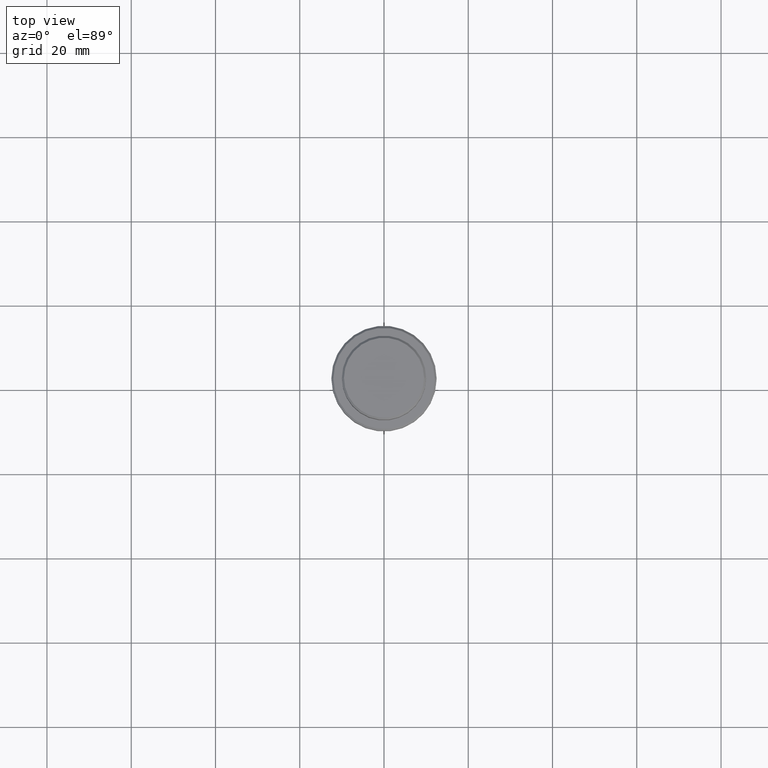
[diagram: clean part render]
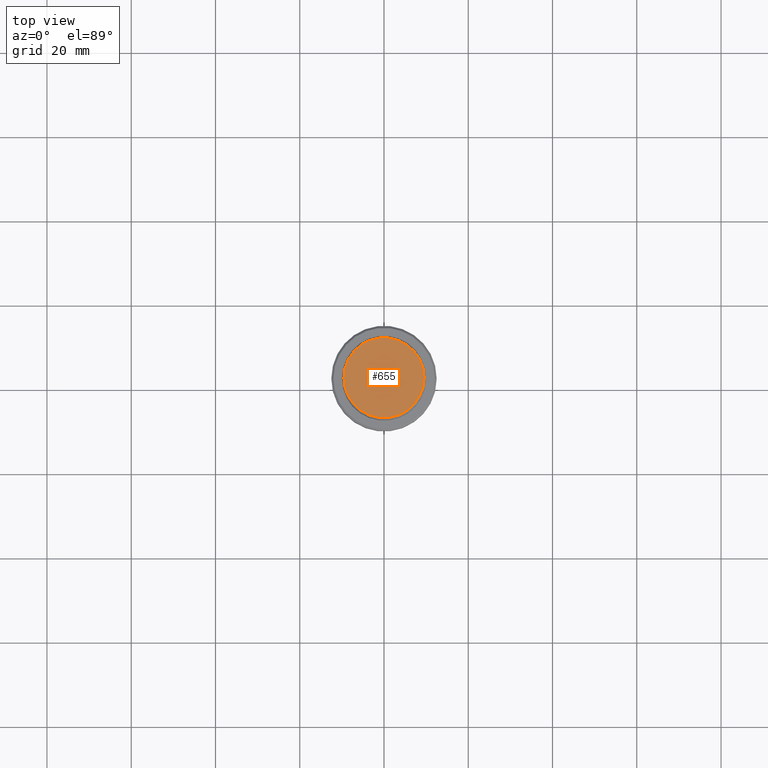
[diagram: same view with one face highlighted and labeled with its STEP entity id]
A machine part, top view. The second image highlights one B-rep face of the part: STEP entity #655.
In plain terms, the highlighted planar face has unit normal (0, -0, 1).
Its self-contained STEP definition (entity closure, byte-faithful):
#166 = CARTESIAN_POINT ( 'NONE',  ( 9.500000000000023093, 1.194030629168670653E-15, 0.000000000000000000 ) ) ;
#175 = CARTESIAN_POINT ( 'NONE',  ( 0.000000000000000000, 0.000000000000000000, 0.000000000000000000 ) ) ;
#468 = EDGE_LOOP ( 'NONE', ( #1115, #484 ) ) ;
#484 = ORIENTED_EDGE ( 'NONE', *, *, #691, .T. ) ;
#497 = FACE_OUTER_BOUND ( 'NONE', #468, .T. ) ;
#501 = EDGE_CURVE ( 'NONE', #673, #630, #1029, .T. ) ;
#536 = AXIS2_PLACEMENT_3D ( 'NONE', #631, #1263, #919 ) ;
#575 = DIRECTION ( 'NONE',  ( 1.000000000000000000, 0.000000000000000000, 0.000000000000000000 ) ) ;
#630 = VERTEX_POINT ( 'NONE', #166 ) ;
#631 = CARTESIAN_POINT ( 'NONE',  ( 0.000000000000000000, 0.000000000000000000, 0.000000000000000000 ) ) ;
#655 = ADVANCED_FACE ( 'NONE', ( #497 ), #939, .T. ) ;
#673 = VERTEX_POINT ( 'NONE', #701 ) ;
#691 = EDGE_CURVE ( 'NONE', #630, #673, #1214, .T. ) ;
#701 = CARTESIAN_POINT ( 'NONE',  ( -9.500000000000023093, 0.000000000000000000, 0.000000000000000000 ) ) ;
#919 = DIRECTION ( 'NONE',  ( 1.000000000000000000, 0.000000000000000000, 0.000000000000000000 ) ) ;
#939 = PLANE ( 'NONE',  #536 ) ;
#1029 = CIRCLE ( 'NONE', #1282, 9.500000000000023093 ) ;
#1034 = DIRECTION ( 'NONE',  ( 1.000000000000000000, 0.000000000000000000, 0.000000000000000000 ) ) ;
#1115 = ORIENTED_EDGE ( 'NONE', *, *, #501, .T. ) ;
#1129 = CARTESIAN_POINT ( 'NONE',  ( 0.000000000000000000, 0.000000000000000000, 0.000000000000000000 ) ) ;
#1139 = DIRECTION ( 'NONE',  ( -0.000000000000000000, -0.000000000000000000, 1.000000000000000000 ) ) ;
#1214 = CIRCLE ( 'NONE', #1327, 9.500000000000023093 ) ;
#1263 = DIRECTION ( 'NONE',  ( 0.000000000000000000, -0.000000000000000000, 1.000000000000000000 ) ) ;
#1282 = AXIS2_PLACEMENT_3D ( 'NONE', #1129, #1350, #575 ) ;
#1327 = AXIS2_PLACEMENT_3D ( 'NONE', #175, #1139, #1034 ) ;
#1350 = DIRECTION ( 'NONE',  ( -0.000000000000000000, -0.000000000000000000, 1.000000000000000000 ) ) ;